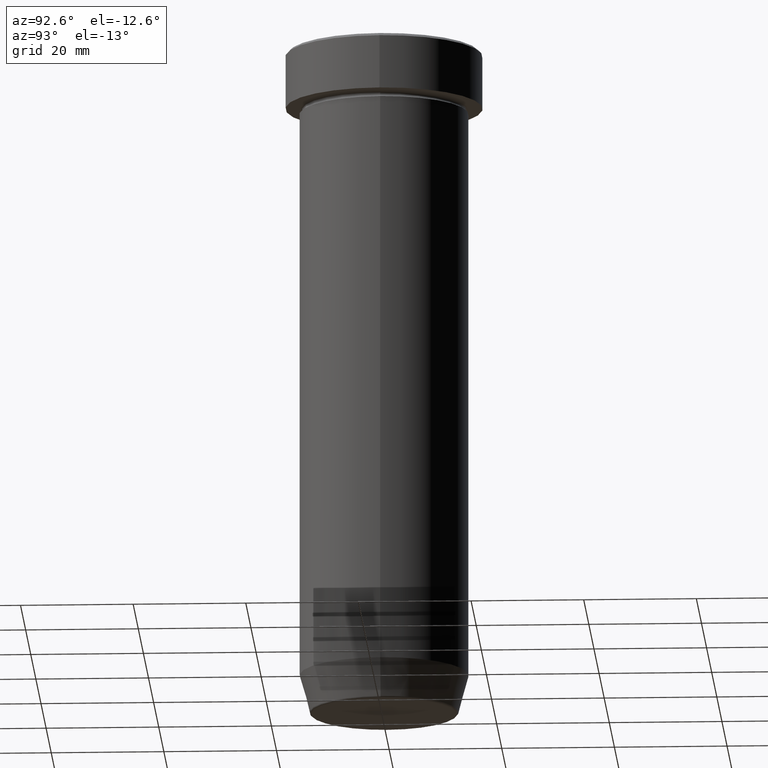
[diagram: clean part render]
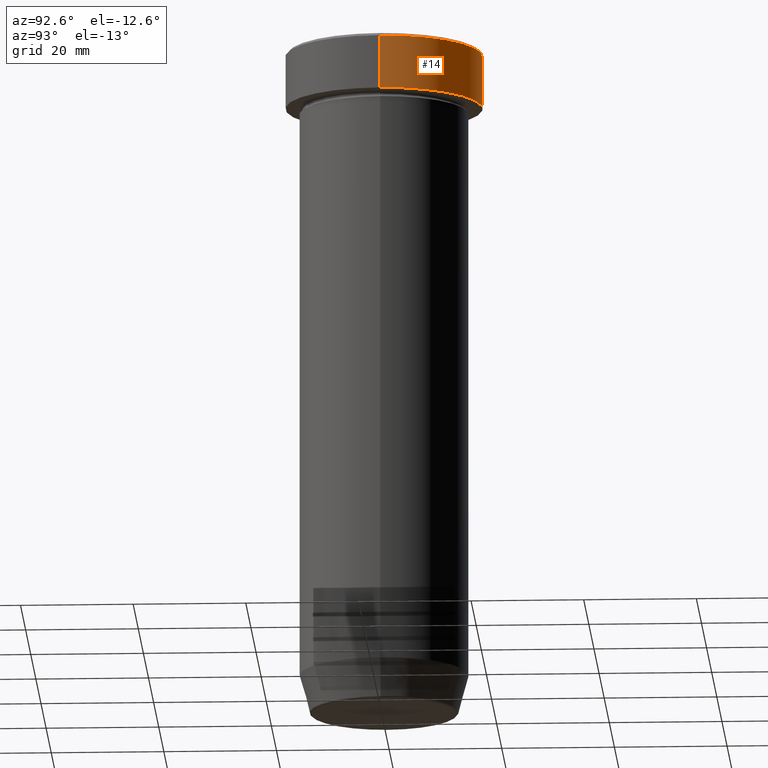
[diagram: same view with one face highlighted and labeled with its STEP entity id]
A machine part, auxiliary view. The second image highlights one B-rep face of the part: STEP entity #14.
In plain terms, the highlighted cylindrical surface (partial cylindrical patch) has radius 17.5 mm, axis along (-0, -0, 1).
Its self-contained STEP definition (entity closure, byte-faithful):
#10 = DIRECTION ( 'NONE',  ( -0.000000000000000000, -0.000000000000000000, 1.000000000000000000 ) ) ;
#14 = ADVANCED_FACE ( 'NONE', ( #175 ), #552, .T. ) ;
#37 = VERTEX_POINT ( 'NONE', #85 ) ;
#85 = CARTESIAN_POINT ( 'NONE',  ( 17.50000000000000000, 0.000000000000000000, -9.999999999999998224 ) ) ;
#93 = CARTESIAN_POINT ( 'NONE',  ( -17.50000000000000000, 2.143131898507868248E-15, -0.5000000000000073275 ) ) ;
#102 = VERTEX_POINT ( 'NONE', #269 ) ;
#103 = AXIS2_PLACEMENT_3D ( 'NONE', #463, #329, #559 ) ;
#138 = VECTOR ( 'NONE', #494, 1000.000000000000000 ) ;
#147 = EDGE_CURVE ( 'NONE', #152, #593, #208, .T. ) ;
#152 = VERTEX_POINT ( 'NONE', #93 ) ;
#158 = LINE ( 'NONE', #422, #456 ) ;
#175 = FACE_OUTER_BOUND ( 'NONE', #536, .T. ) ;
#186 = DIRECTION ( 'NONE',  ( -0.000000000000000000, -0.000000000000000000, 1.000000000000000000 ) ) ;
#201 = ORIENTED_EDGE ( 'NONE', *, *, #147, .T. ) ;
#208 = CIRCLE ( 'NONE', #103, 17.50000000000000000 ) ;
#250 = LINE ( 'NONE', #439, #138 ) ;
#257 = ORIENTED_EDGE ( 'NONE', *, *, #292, .T. ) ;
#267 = AXIS2_PLACEMENT_3D ( 'NONE', #279, #10, #565 ) ;
#269 = CARTESIAN_POINT ( 'NONE',  ( -17.50000000000000000, 2.143131898507868248E-15, -9.999999999999998224 ) ) ;
#279 = CARTESIAN_POINT ( 'NONE',  ( 0.000000000000000000, 0.000000000000000000, -9.999999999999998224 ) ) ;
#292 = EDGE_CURVE ( 'NONE', #102, #152, #158, .T. ) ;
#306 = ORIENTED_EDGE ( 'NONE', *, *, #416, .F. ) ;
#328 = EDGE_CURVE ( 'NONE', #37, #102, #532, .T. ) ;
#329 = DIRECTION ( 'NONE',  ( 0.000000000000000000, 0.000000000000000000, -1.000000000000000000 ) ) ;
#359 = ORIENTED_EDGE ( 'NONE', *, *, #328, .T. ) ;
#406 = DIRECTION ( 'NONE',  ( 1.000000000000000000, 0.000000000000000000, 0.000000000000000000 ) ) ;
#416 = EDGE_CURVE ( 'NONE', #37, #593, #250, .T. ) ;
#422 = CARTESIAN_POINT ( 'NONE',  ( -17.50000000000000000, 2.143131898507868248E-15, 0.000000000000000000 ) ) ;
#439 = CARTESIAN_POINT ( 'NONE',  ( 17.50000000000000000, 0.000000000000000000, 0.000000000000000000 ) ) ;
#456 = VECTOR ( 'NONE', #186, 1000.000000000000000 ) ;
#463 = CARTESIAN_POINT ( 'NONE',  ( 0.000000000000000000, 0.000000000000000000, -0.5000000000000073275 ) ) ;
#492 = CARTESIAN_POINT ( 'NONE',  ( 17.50000000000000000, 0.000000000000000000, -0.5000000000000073275 ) ) ;
#494 = DIRECTION ( 'NONE',  ( -0.000000000000000000, -0.000000000000000000, 1.000000000000000000 ) ) ;
#532 = CIRCLE ( 'NONE', #267, 17.50000000000000000 ) ;
#536 = EDGE_LOOP ( 'NONE', ( #359, #257, #201, #306 ) ) ;
#546 = AXIS2_PLACEMENT_3D ( 'NONE', #547, #588, #406 ) ;
#547 = CARTESIAN_POINT ( 'NONE',  ( 0.000000000000000000, 0.000000000000000000, 0.000000000000000000 ) ) ;
#552 = CYLINDRICAL_SURFACE ( 'NONE', #546, 17.50000000000000000 ) ;
#559 = DIRECTION ( 'NONE',  ( 1.000000000000000000, 0.000000000000000000, 0.000000000000000000 ) ) ;
#565 = DIRECTION ( 'NONE',  ( 1.000000000000000000, 0.000000000000000000, 0.000000000000000000 ) ) ;
#588 = DIRECTION ( 'NONE',  ( -0.000000000000000000, -0.000000000000000000, 1.000000000000000000 ) ) ;
#593 = VERTEX_POINT ( 'NONE', #492 ) ;